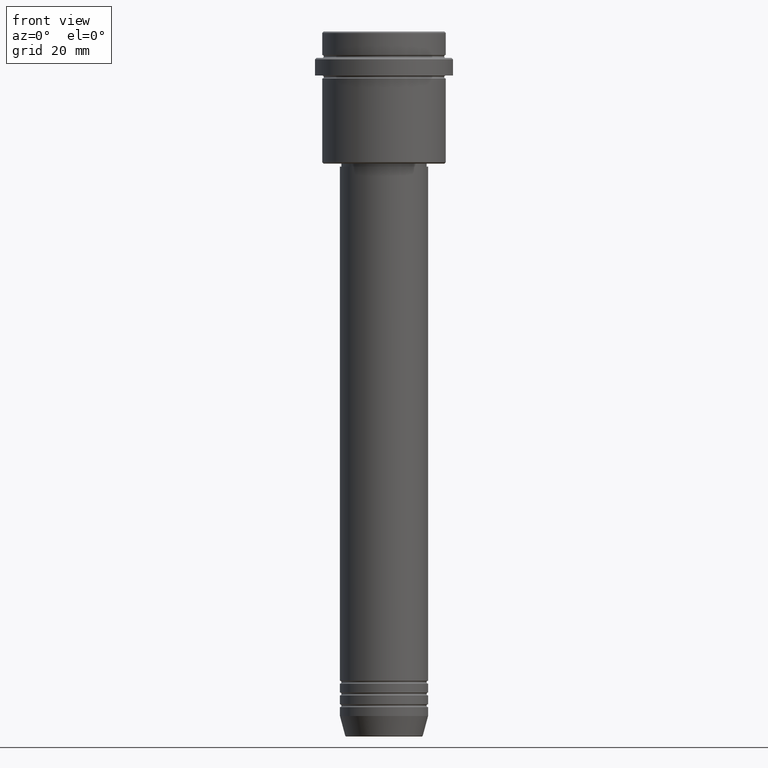
[diagram: clean part render]
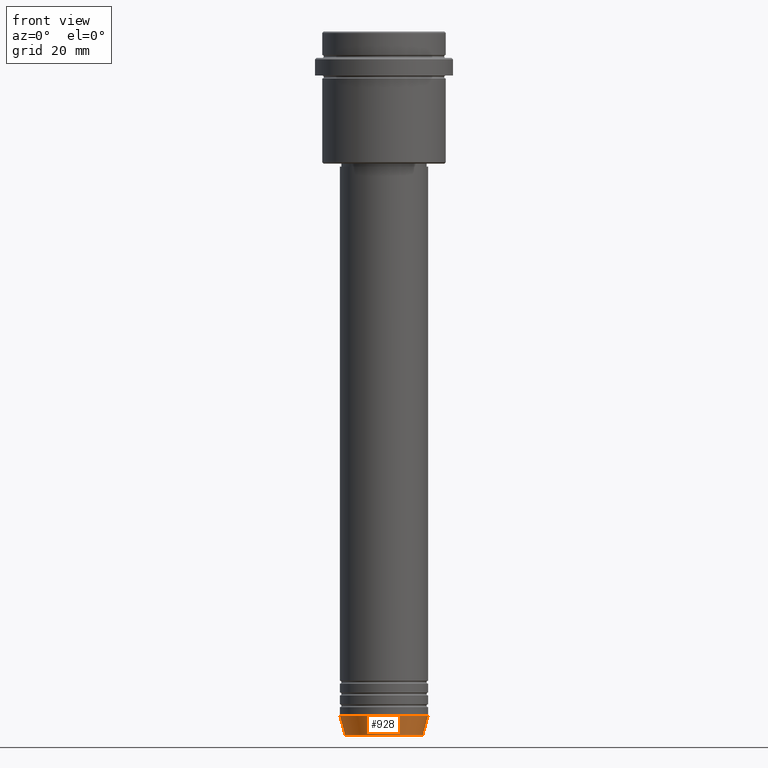
[diagram: same view with one face highlighted and labeled with its STEP entity id]
A machine part, front view. The second image highlights one B-rep face of the part: STEP entity #928.
In plain terms, the highlighted conical surface has half-angle 15 deg.
Its self-contained STEP definition (entity closure, byte-faithful):
#2 = CARTESIAN_POINT ( 'NONE',  ( 15.00000000000000000, 0.000000000000000000, -233.0000000000000284 ) ) ;
#61 = EDGE_CURVE ( 'NONE', #88, #619, #998, .T. ) ;
#88 = VERTEX_POINT ( 'NONE', #1067 ) ;
#93 = CONICAL_SURFACE ( 'NONE', #894, 15.00000000000000000, 0.2617993877991491303 ) ;
#104 = DIRECTION ( 'NONE',  ( 1.000000000000000000, 0.000000000000000000, 0.000000000000000000 ) ) ;
#105 = AXIS2_PLACEMENT_3D ( 'NONE', #286, #156, #494 ) ;
#156 = DIRECTION ( 'NONE',  ( -0.000000000000000000, -0.000000000000000000, 1.000000000000000000 ) ) ;
#188 = DIRECTION ( 'NONE',  ( 1.000000000000000000, 0.000000000000000000, 0.000000000000000000 ) ) ;
#218 = CIRCLE ( 'NONE', #447, 13.22365507213720015 ) ;
#239 = DIRECTION ( 'NONE',  ( -0.2588190451025205174, 3.169619151431761243E-17, 0.9659258262890684232 ) ) ;
#243 = CARTESIAN_POINT ( 'NONE',  ( 0.000000000000000000, 0.000000000000000000, -239.6294095225513274 ) ) ;
#286 = CARTESIAN_POINT ( 'NONE',  ( 0.000000000000000000, 0.000000000000000000, -233.0000000000000284 ) ) ;
#297 = FACE_OUTER_BOUND ( 'NONE', #1225, .T. ) ;
#365 = ORIENTED_EDGE ( 'NONE', *, *, #613, .T. ) ;
#383 = CARTESIAN_POINT ( 'NONE',  ( -13.22365507213720015, 1.728200442216588780E-15, -239.6294095225513274 ) ) ;
#429 = CARTESIAN_POINT ( 'NONE',  ( -15.00000000000000000, 1.836970198721029589E-15, -233.0000000000000284 ) ) ;
#447 = AXIS2_PLACEMENT_3D ( 'NONE', #243, #1101, #104 ) ;
#494 = DIRECTION ( 'NONE',  ( 1.000000000000000000, 0.000000000000000000, 0.000000000000000000 ) ) ;
#568 = CARTESIAN_POINT ( 'NONE',  ( 15.00000000000000000, 0.000000000000000000, -233.0000000000000284 ) ) ;
#613 = EDGE_CURVE ( 'NONE', #1254, #1235, #218, .T. ) ;
#619 = VERTEX_POINT ( 'NONE', #568 ) ;
#676 = LINE ( 'NONE', #2, #1398 ) ;
#729 = CARTESIAN_POINT ( 'NONE',  ( 0.000000000000000000, 0.000000000000000000, -233.0000000000000284 ) ) ;
#733 = DIRECTION ( 'NONE',  ( -0.000000000000000000, -0.000000000000000000, 1.000000000000000000 ) ) ;
#734 = ORIENTED_EDGE ( 'NONE', *, *, #1029, .F. ) ;
#742 = LINE ( 'NONE', #429, #1129 ) ;
#864 = DIRECTION ( 'NONE',  ( 0.2588190451025205174, 0.000000000000000000, 0.9659258262890684232 ) ) ;
#894 = AXIS2_PLACEMENT_3D ( 'NONE', #729, #733, #188 ) ;
#928 = ADVANCED_FACE ( 'NONE', ( #297 ), #93, .T. ) ;
#931 = CARTESIAN_POINT ( 'NONE',  ( 13.22365507213720015, 0.000000000000000000, -239.6294095225513274 ) ) ;
#998 = CIRCLE ( 'NONE', #105, 15.00000000000000000 ) ;
#1029 = EDGE_CURVE ( 'NONE', #1254, #88, #742, .T. ) ;
#1036 = ORIENTED_EDGE ( 'NONE', *, *, #61, .F. ) ;
#1067 = CARTESIAN_POINT ( 'NONE',  ( -15.00000000000000000, 1.836970198721029589E-15, -233.0000000000000284 ) ) ;
#1078 = EDGE_CURVE ( 'NONE', #1235, #619, #676, .T. ) ;
#1101 = DIRECTION ( 'NONE',  ( -0.000000000000000000, -0.000000000000000000, 1.000000000000000000 ) ) ;
#1129 = VECTOR ( 'NONE', #239, 1000.000000000000114 ) ;
#1225 = EDGE_LOOP ( 'NONE', ( #734, #365, #1337, #1036 ) ) ;
#1235 = VERTEX_POINT ( 'NONE', #931 ) ;
#1254 = VERTEX_POINT ( 'NONE', #383 ) ;
#1337 = ORIENTED_EDGE ( 'NONE', *, *, #1078, .T. ) ;
#1398 = VECTOR ( 'NONE', #864, 1000.000000000000114 ) ;